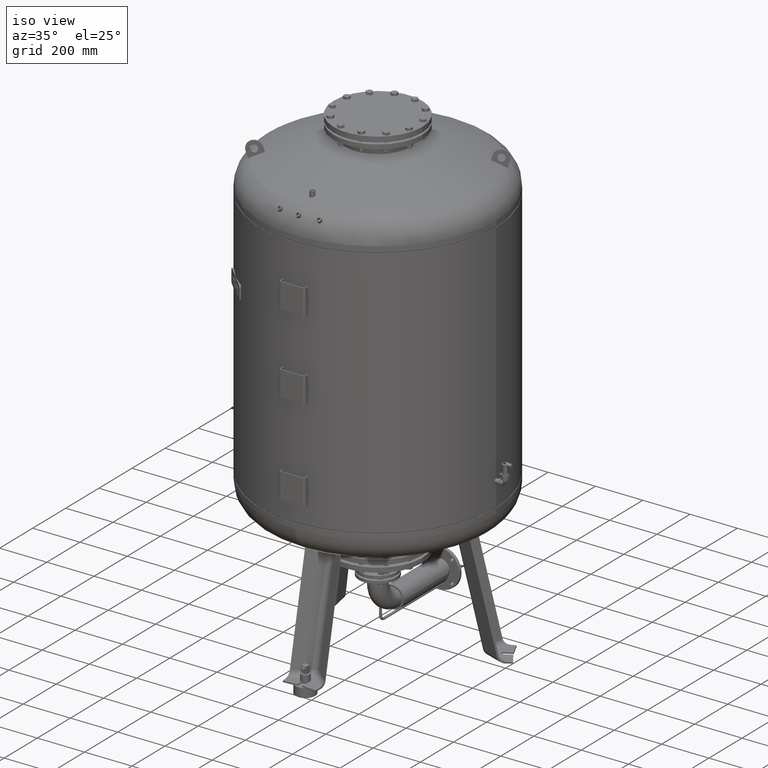
[diagram: clean part render]
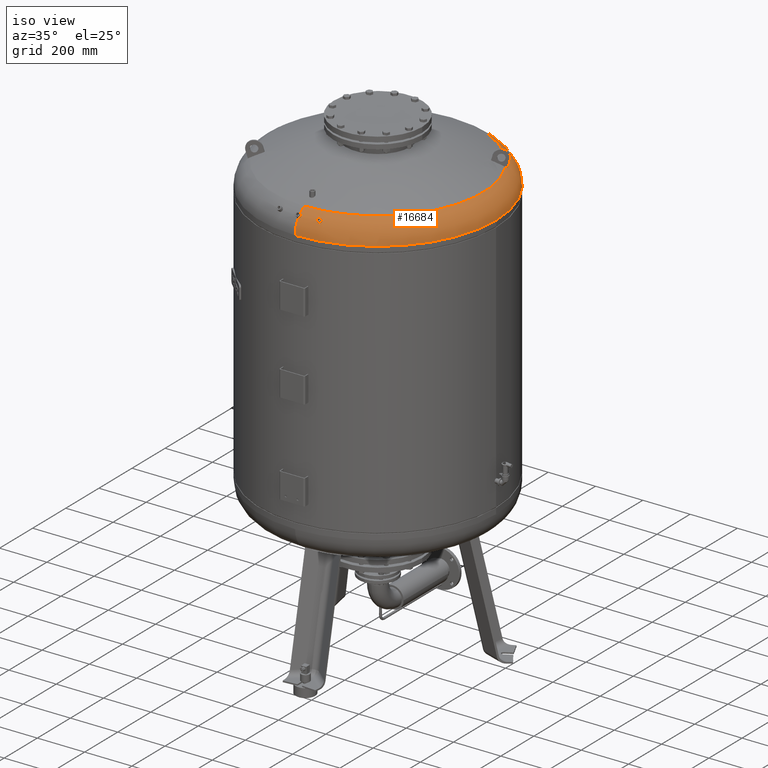
[diagram: same view with one face highlighted and labeled with its STEP entity id]
A machine part, iso view. The second image highlights one B-rep face of the part: STEP entity #16684.
In plain terms, the highlighted toroidal blend (fillet) surface has major radius 399.4 mm and minor (blend) radius 100.6 mm.
Its self-contained STEP definition (entity closure, byte-faithful):
#15595=CARTESIAN_POINT('',(-2.440638E-014,-481.277772533175660,1834.994541120563100));
#15596=VERTEX_POINT('',#15595);
#15612=CARTESIAN_POINT('',(-3.572896E-014,-469.189623608923340,1848.999930700816800));
#15613=VERTEX_POINT('',#15612);
#15792=CARTESIAN_POINT('',(80.066836435702612,-474.169703910089030,1835.544859291312400));
#15793=VERTEX_POINT('',#15792);
#15809=CARTESIAN_POINT('',(84.993415216716102,-461.933500427799120,1848.516956321284600));
#15810=VERTEX_POINT('',#15809);
#15817=CARTESIAN_POINT('',(81.473923119922318,-462.061578962946780,1848.999930700817500));
#15818=VERTEX_POINT('',#15817);
#15819=CARTESIAN_POINT('',(84.993415216716102,-461.933500427799120,1848.516956321284600));
#15820=CARTESIAN_POINT('',(84.503544824743713,-461.881321544061170,1848.653643192280700));
#15821=CARTESIAN_POINT('',(84.002442769029187,-461.858894011723750,1848.762270878815600));
#15822=CARTESIAN_POINT('',(82.822471138810215,-461.878254653280580,1848.946942504954200));
#15823=CARTESIAN_POINT('',(82.144598442698438,-461.943320808245910,1848.999930700817500));
#15824=CARTESIAN_POINT('',(81.473923119922304,-462.061578962946730,1848.999930700817500));
#15825=B_SPLINE_CURVE_WITH_KNOTS('',3,(#15819,#15820,#15821,#15822,#15823,#15824),.UNSPECIFIED.,.F.,.U.,(4,2,4),(54.717280967176990,56.257708759570029,58.300773471615884),.UNSPECIFIED.);
#15826=EDGE_CURVE('',#15810,#15818,#15825,.T.);
#15828=CARTESIAN_POINT('',(81.473923119922304,-462.061578962946730,1848.999930700817500));
#15829=CARTESIAN_POINT('',(80.270940661179878,-462.273697227741990,1848.999930700817500));
#15830=CARTESIAN_POINT('',(79.110151202356022,-462.653940908312680,1848.829779195902300));
#15831=CARTESIAN_POINT('',(77.003352938368124,-463.701225683752060,1848.162764582918300));
#15832=CARTESIAN_POINT('',(76.078610963546808,-464.358213497496930,1847.671570749344300));
#15833=CARTESIAN_POINT('',(74.666555324185623,-465.772515080668030,1846.480263545121700));
#15834=CARTESIAN_POINT('',(74.156046716611357,-466.502070575653650,1845.814790599600400));
#15835=CARTESIAN_POINT('',(73.546890366332462,-467.891027049919780,1844.442578504223800));
#15836=CARTESIAN_POINT('',(73.402751556737073,-468.536980418619810,1843.763934437494500));
#15837=CARTESIAN_POINT('',(73.397271381861728,-469.764387575231640,1842.388972231687800));
#15838=CARTESIAN_POINT('',(73.523644048795887,-470.340643221260680,1841.702391432047500));
#15839=CARTESIAN_POINT('',(74.054685122545507,-471.470554353407810,1840.267063871446700));
#15840=CARTESIAN_POINT('',(74.485445672046993,-472.006748614220500,1839.529719696096700));
#15841=CARTESIAN_POINT('',(75.744352307216062,-473.029685942925310,1837.998329940812500));
#15842=CARTESIAN_POINT('',(76.628183333923275,-473.467721184790610,1837.244530667284600));
#15843=CARTESIAN_POINT('',(78.400858852786129,-473.978097657179490,1836.183218530508400));
#15844=CARTESIAN_POINT('',(79.214345949321853,-474.114157329458240,1835.816526345943900));
#15845=CARTESIAN_POINT('',(80.066836435702612,-474.169703910089030,1835.544859291312400));
#15846=B_SPLINE_CURVE_WITH_KNOTS('',3,(#15828,#15829,#15830,#15831,#15832,#15833,#15834,#15835,#15836,#15837,#15838,#15839,#15840,#15841,#15842,#15843,#15844,#15845),.UNSPECIFIED.,.F.,.U.,(4,2,2,2,2,2,2,2,4),(0.0,3.664621206716430,7.336696746492708,10.645141642724678,13.472869490676285,16.174622177224034,19.180003853472179,22.867295390501965,25.565018784729872),.UNSPECIFIED.);
#15847=EDGE_CURVE('',#15818,#15793,#15846,.T.);
#16385=CARTESIAN_POINT('',(500.0,-3.553717E-014,1776.544644927280400));
#16386=VERTEX_POINT('',#16385);
#16410=CARTESIAN_POINT('',(3.753887E-014,499.999999999999940,1776.544644927280400));
#16411=VERTEX_POINT('',#16410);
#16419=CARTESIAN_POINT('',(2.260647E-015,-3.553717E-014,1776.544644927280400));
#16420=DIRECTION('',(0.0,0.0,-1.0));
#16421=DIRECTION('',(1.0,0.0,0.0));
#16422=AXIS2_PLACEMENT_3D('',#16419,#16420,#16421);
#16423=CIRCLE('',#16422,500.0);
#16424=EDGE_CURVE('',#16411,#16386,#16423,.T.);
#16534=CARTESIAN_POINT('',(-2.369145E-014,-3.553717E-014,1776.544644927280400));
#16535=DIRECTION('',(1.168563E-017,-1.836970E-016,-1.0));
#16536=DIRECTION('',(0.0,-1.0,0.0));
#16537=AXIS2_PLACEMENT_3D('',#16534,#16535,#16536);
#16538=TOROIDAL_SURFACE('',#16537,399.399999999999920,100.600000000000010);
#16539=CARTESIAN_POINT('',(-2.369145E-014,-500.000000000000060,1776.544644927280400));
#16540=VERTEX_POINT('',#16539);
#16541=CARTESIAN_POINT('',(-2.369145E-014,-399.399999999999980,1776.544644927280400));
#16542=DIRECTION('',(-1.0,0.0,0.0));
#16543=DIRECTION('',(0.0,-1.0,0.0));
#16544=AXIS2_PLACEMENT_3D('',#16541,#16542,#16543);
#16545=CIRCLE('',#16544,100.600000000000010);
#16546=EDGE_CURVE('',#16540,#15596,#16545,.T.);
#16547=ORIENTED_EDGE('',*,*,#16546,.F.);
#16548=CARTESIAN_POINT('',(2.260647E-015,-3.553717E-014,1776.544644927280400));
#16549=DIRECTION('',(0.0,0.0,-1.0));
#16550=DIRECTION('',(1.0,0.0,0.0));
#16551=AXIS2_PLACEMENT_3D('',#16548,#16549,#16550);
#16552=CIRCLE('',#16551,500.0);
#16553=EDGE_CURVE('',#16386,#16540,#16552,.T.);
#16554=ORIENTED_EDGE('',*,*,#16553,.F.);
#16555=ORIENTED_EDGE('',*,*,#16424,.F.);
#16556=CARTESIAN_POINT('',(2.959885E-014,443.777777777777600,1866.827383252533800));
#16557=VERTEX_POINT('',#16556);
#16558=CARTESIAN_POINT('',(2.521933E-014,399.399999999999860,1776.544644927280400));
#16559=DIRECTION('',(1.0,0.0,0.0));
#16560=DIRECTION('',(0.0,1.0,0.0));
#16561=AXIS2_PLACEMENT_3D('',#16558,#16559,#16560);
#16562=CIRCLE('',#16561,100.600000000000010);
#16563=EDGE_CURVE('',#16411,#16557,#16562,.T.);
#16564=ORIENTED_EDGE('',*,*,#16563,.T.);
#16565=CARTESIAN_POINT('',(382.814047410498800,224.481894937152840,1866.827383252533800));
#16566=VERTEX_POINT('',#16565);
#16567=CARTESIAN_POINT('',(1.205637E-015,-1.895250E-014,1866.827383252533800));
#16568=DIRECTION('',(0.0,0.0,-1.0));
#16569=DIRECTION('',(1.0,0.0,0.0));
#16570=AXIS2_PLACEMENT_3D('',#16567,#16568,#16569);
#16571=CIRCLE('',#16570,443.777777777777600);
#16572=EDGE_CURVE('',#16557,#16566,#16571,.T.);
#16573=ORIENTED_EDGE('',*,*,#16572,.T.);
#16574=CARTESIAN_POINT('',(389.830975236120140,228.533120106159600,1862.371241859355700));
#16575=VERTEX_POINT('',#16574);
#16576=CARTESIAN_POINT('',(382.814047410498800,224.481894937152840,1866.827383252533800));
#16577=CARTESIAN_POINT('',(383.639422866123480,224.958425678640250,1866.358923998316000));
#16578=CARTESIAN_POINT('',(384.466016830460770,225.435659926460910,1865.871006334071100));
#16579=CARTESIAN_POINT('',(386.558917595189540,226.643996746364280,1864.585746300583200));
#16580=CARTESIAN_POINT('',(387.823245864690140,227.373957013104530,1863.762717578220400));
#16581=CARTESIAN_POINT('',(389.327563745971080,228.242475346808870,1862.724648865125300));
#16582=CARTESIAN_POINT('',(389.579557890296660,228.387964233869470,1862.548753709753100));
#16583=CARTESIAN_POINT('',(389.830975236120140,228.533120106159600,1862.371241859355700));
#16584=B_SPLINE_CURVE_WITH_KNOTS('',3,(#16576,#16577,#16578,#16579,#16580,#16581,#16582,#16583),.UNSPECIFIED.,.F.,.U.,(4,2,2,4),(490.490461707606410,493.520789239596300,498.176642435137920,499.115761009270220),.UNSPECIFIED.);
#16585=EDGE_CURVE('',#16566,#16575,#16584,.T.);
#16586=ORIENTED_EDGE('',*,*,#16585,.T.);
#16587=CARTESIAN_POINT('',(392.830975236120080,223.336967683452970,1862.371241859355700));
#16588=VERTEX_POINT('',#16587);
#16589=CARTESIAN_POINT('',(389.830975236120140,228.533120106159600,1862.371241859355700));
#16590=CARTESIAN_POINT('',(390.333307968774880,227.664983484212660,1862.374723691362300));
#16591=CARTESIAN_POINT('',(390.833741791658330,226.799162381118410,1862.376448557724000));
#16592=CARTESIAN_POINT('',(391.332224433282480,225.935765119134290,1862.376448557724000));
#16593=CARTESIAN_POINT('',(391.830707074909470,225.072367857145200,1862.376448557724000));
#16594=CARTESIAN_POINT('',(392.330313233882860,224.206068902062920,1862.374723691362300));
#16595=CARTESIAN_POINT('',(392.830975236120080,223.336967683452970,1862.371241859355700));
#16596=B_SPLINE_CURVE_WITH_KNOTS('',3,(#16589,#16590,#16591,#16592,#16593,#16594,#16595),.UNSPECIFIED.,.F.,.U.,(4,3,4),(-2.990895849744737,0.0,2.990895849762006),.UNSPECIFIED.);
#16597=EDGE_CURVE('',#16575,#16588,#16596,.T.);
#16598=ORIENTED_EDGE('',*,*,#16597,.T.);
#16599=CARTESIAN_POINT('',(385.814047410498740,219.285742514446160,1866.827383252533800));
#16600=VERTEX_POINT('',#16599);
#16601=CARTESIAN_POINT('',(392.830975236120080,223.336967683452970,1862.371241859355700));
#16602=CARTESIAN_POINT('',(392.579557890296540,223.191811811162810,1862.548753709753100));
#16603=CARTESIAN_POINT('',(392.327563745971020,223.046322924102180,1862.724648865125300));
#16604=CARTESIAN_POINT('',(390.823245864689970,222.177804590397760,1863.762717578220600));
#16605=CARTESIAN_POINT('',(389.558917595189310,221.447844323657480,1864.585746300583200));
#16606=CARTESIAN_POINT('',(387.466016830460660,220.239507503754170,1865.871006334071100));
#16607=CARTESIAN_POINT('',(386.639422866123310,219.762273255933510,1866.358923998316000));
#16608=CARTESIAN_POINT('',(385.814047410498740,219.285742514446160,1866.827383252533800));
#16609=B_SPLINE_CURVE_WITH_KNOTS('',3,(#16601,#16602,#16603,#16604,#16605,#16606,#16607,#16608),.UNSPECIFIED.,.F.,.U.,(4,2,2,4),(96.832413882587730,97.771532456720365,102.427385652262000,105.457713184251520),.UNSPECIFIED.);
#16610=EDGE_CURVE('',#16588,#16600,#16609,.T.);
#16611=ORIENTED_EDGE('',*,*,#16610,.T.);
#16612=CARTESIAN_POINT('',(-2.474646E-014,-443.777777777777600,1866.827383252533800));
#16613=VERTEX_POINT('',#16612);
#16614=CARTESIAN_POINT('',(1.205637E-015,-1.895250E-014,1866.827383252533800));
#16615=DIRECTION('',(0.0,0.0,-1.0));
#16616=DIRECTION('',(1.0,0.0,0.0));
#16617=AXIS2_PLACEMENT_3D('',#16614,#16615,#16616);
#16618=CIRCLE('',#16617,443.777777777777600);
#16619=EDGE_CURVE('',#16600,#16613,#16618,.T.);
#16620=ORIENTED_EDGE('',*,*,#16619,.T.);
#16621=CARTESIAN_POINT('',(-2.369145E-014,-399.399999999999980,1776.544644927280400));
#16622=DIRECTION('',(-1.0,0.0,0.0));
#16623=DIRECTION('',(0.0,-1.0,0.0));
#16624=AXIS2_PLACEMENT_3D('',#16621,#16622,#16623);
#16625=CIRCLE('',#16624,100.600000000000010);
#16626=EDGE_CURVE('',#15613,#16613,#16625,.T.);
#16627=ORIENTED_EDGE('',*,*,#16626,.F.);
#16628=CARTESIAN_POINT('',(-2.440638E-014,-481.277772533175660,1834.994541120563100));
#16629=CARTESIAN_POINT('',(0.663767693420876,-481.277772533175660,1834.994541120563100));
#16630=CARTESIAN_POINT('',(1.327132407291983,-481.235255460921620,1835.052283119416900));
#16631=CARTESIAN_POINT('',(3.172470167635499,-480.993992577751440,1835.378158901997900));
#16632=CARTESIAN_POINT('',(4.302304662895460,-480.697975751295870,1835.777429773388600));
#16633=CARTESIAN_POINT('',(6.300367150350057,-479.850692324963290,1836.893946849666200));
#16634=CARTESIAN_POINT('',(7.150217738928611,-479.308093242282890,1837.599111698446200));
#16635=CARTESIAN_POINT('',(8.319777860177481,-478.164700028228940,1839.040818505617200));
#16636=CARTESIAN_POINT('',(8.706424071928504,-477.606888046208210,1839.730849947240800));
#16637=CARTESIAN_POINT('',(9.138956108212256,-476.550009975629050,1841.005773639236800));
#16638=CARTESIAN_POINT('',(9.239621495916103,-476.069154533581920,1841.575460062544400));
#16639=CARTESIAN_POINT('',(9.258537269256525,-475.107555070033870,1842.692848427051600));
#16640=CARTESIAN_POINT('',(9.182647495145238,-474.630784217413410,1843.236649376827700));
#16641=CARTESIAN_POINT('',(8.830953197445302,-473.592961342907530,1844.399460517053700));
#16642=CARTESIAN_POINT('',(8.519238167698774,-473.039967067691240,1845.005072139537300));
#16643=CARTESIAN_POINT('',(7.501686877240208,-471.784423628546960,1846.354741354832200));
#16644=CARTESIAN_POINT('',(6.696554039162005,-471.126680230690230,1847.039688728346800));
#16645=CARTESIAN_POINT('',(4.844206906027964,-470.104528269520240,1848.087050795337700));
#16646=CARTESIAN_POINT('',(3.838519807076489,-469.728695196732190,1848.463477571226100));
#16647=CARTESIAN_POINT('',(1.868068541252256,-469.291199432981440,1848.899740677942900));
#16648=CARTESIAN_POINT('',(0.936826815871944,-469.189623608923280,1848.999930700816800));
#16649=CARTESIAN_POINT('',(-3.572896E-014,-469.189623608923280,1848.999930700816800));
#16650=B_SPLINE_CURVE_WITH_KNOTS('',3,(#16628,#16629,#16630,#16631,#16632,#16633,#16634,#16635,#16636,#16637,#16638,#16639,#16640,#16641,#16642,#16643,#16644,#16645,#16646,#16647,#16648,#16649),.UNSPECIFIED.,.F.,.U.,(4,2,2,2,2,2,2,2,2,2,4),(29.145313870326323,31.146215195881425,34.813475803036134,38.468575725547367,41.354726520520913,43.603449066426087,45.777737681779072,48.396886370345513,52.094681779719743,55.479428103079613,58.289908550695550),.UNSPECIFIED.);
#16651=EDGE_CURVE('',#15596,#15613,#16650,.T.);
#16652=ORIENTED_EDGE('',*,*,#16651,.F.);
#16653=EDGE_LOOP('',(#16547,#16554,#16555,#16564,#16573,#16586,#16598,#16611,#16620,#16627,#16652));
#16654=FACE_OUTER_BOUND('',#16653,.T.);
#16655=ORIENTED_EDGE('',*,*,#15847,.F.);
#16656=ORIENTED_EDGE('',*,*,#15826,.F.);
#16657=CARTESIAN_POINT('',(80.066836435702612,-474.169703910089030,1835.544859291312400));
#16658=CARTESIAN_POINT('',(80.315290421202320,-474.185892676484740,1835.465683319814200));
#16659=CARTESIAN_POINT('',(80.567055814395673,-474.195236766448260,1835.394572741378400));
#16660=CARTESIAN_POINT('',(81.975782245854333,-474.208846044477410,1835.047261591973000));
#16661=CARTESIAN_POINT('',(83.163543889568857,-474.078529688450090,1834.940843680592300));
#16662=CARTESIAN_POINT('',(85.513696161117423,-473.543701777092790,1835.101539526411200));
#16663=CARTESIAN_POINT('',(86.649886617399389,-473.136085914994910,1835.378947216424400));
#16664=CARTESIAN_POINT('',(88.673379002015594,-472.088947728394430,1836.284448431172500));
#16665=CARTESIAN_POINT('',(89.540955749349209,-471.459742967043840,1836.902932775675700));
#16666=CARTESIAN_POINT('',(90.810704456191033,-470.126411924304310,1838.303193733366500));
#16667=CARTESIAN_POINT('',(91.244393478903731,-469.448437788365420,1839.048146560683100));
#16668=CARTESIAN_POINT('',(91.708219907117254,-468.140229586524130,1840.524514464103300));
#16669=CARTESIAN_POINT('',(91.783015315883944,-467.523850855581490,1841.235044307170900));
#16670=CARTESIAN_POINT('',(91.649309327879109,-466.332818489340010,1842.631079989716200));
#16671=CARTESIAN_POINT('',(91.452490219423183,-465.764071585310430,1843.308750149637000));
#16672=CARTESIAN_POINT('',(90.770288478877433,-464.629336569024360,1844.687431400224600));
#16673=CARTESIAN_POINT('',(90.257814786335942,-464.079701137242920,1845.371992092357500));
#16674=CARTESIAN_POINT('',(88.830486416840472,-463.026552164636030,1846.739698777479400));
#16675=CARTESIAN_POINT('',(87.866386218523488,-462.569861802145790,1847.376609856126400));
#16676=CARTESIAN_POINT('',(86.209105977873719,-462.112051732879710,1848.128306691291100));
#16677=CARTESIAN_POINT('',(85.610161947052418,-461.999193632502570,1848.344867576693800));
#16678=CARTESIAN_POINT('',(84.993415216716102,-461.933500427799120,1848.516956321284600));
#16679=B_SPLINE_CURVE_WITH_KNOTS('',3,(#16657,#16658,#16659,#16660,#16661,#16662,#16663,#16664,#16665,#16666,#16667,#16668,#16669,#16670,#16671,#16672,#16673,#16674,#16675,#16676,#16677,#16678),.UNSPECIFIED.,.F.,.U.,(4,2,2,2,2,2,2,2,2,2,4),(25.565018784729872,26.351256449290144,29.918055138783192,33.598090588564858,37.273576199404459,40.538044904237033,43.352907588273524,46.057931291471377,49.087501744354789,52.777882669491767,54.717280967176990),.UNSPECIFIED.);
#16680=EDGE_CURVE('',#15793,#15810,#16679,.T.);
#16681=ORIENTED_EDGE('',*,*,#16680,.F.);
#16682=EDGE_LOOP('',(#16655,#16656,#16681));
#16683=FACE_BOUND('',#16682,.T.);
#16684=ADVANCED_FACE('',(#16654,#16683),#16538,.T.);